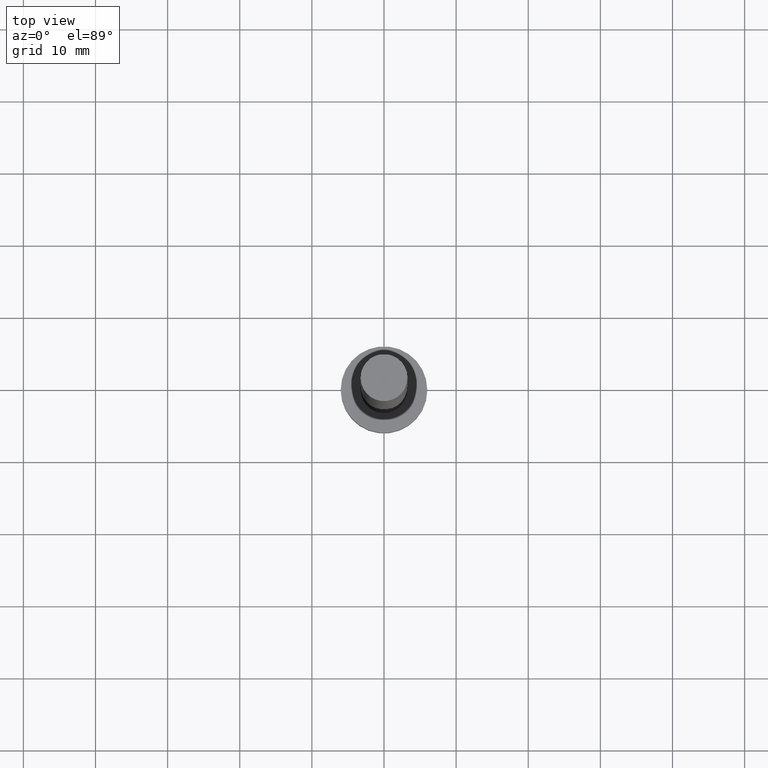
[diagram: clean part render]
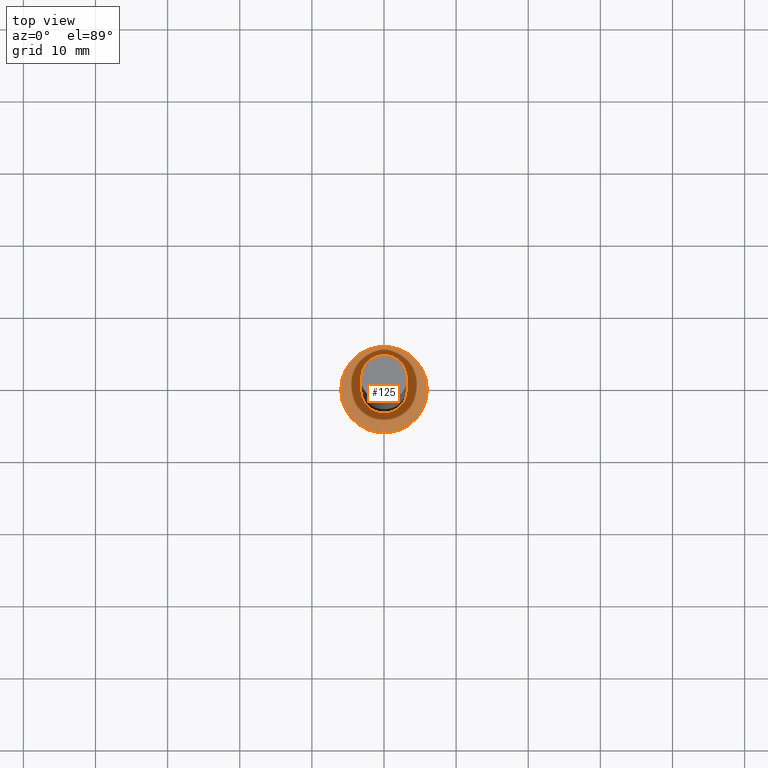
[diagram: same view with one face highlighted and labeled with its STEP entity id]
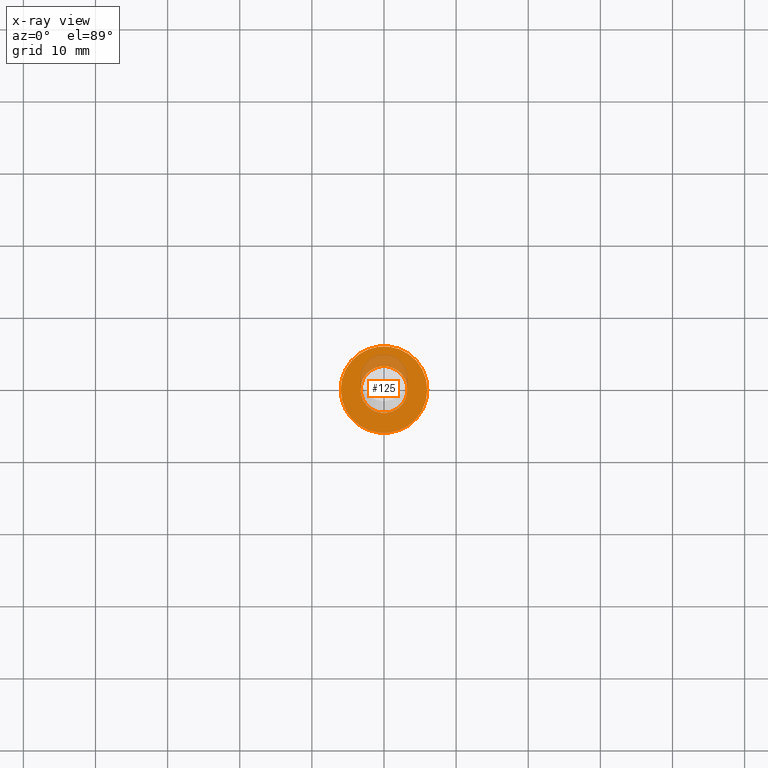
[diagram: x-ray of the same camera — body ghosted, the highlighted face saturated]
A machine part, top view. The second image highlights one B-rep face of the part: STEP entity #125.
The next image is the same camera in x-ray: the body ghosted, the highlighted face saturated — about 14% of this face is hidden behind the body in this view.
In plain terms, the highlighted planar face has unit normal (0, 0, 1).
Its self-contained STEP definition (entity closure, byte-faithful):
#14 = EDGE_CURVE ( 'NONE', #86, #200, #232, .T. ) ;
#23 = CARTESIAN_POINT ( 'NONE',  ( -6.000000000000000888, 0.000000000000000000, 5.000000000000000000 ) ) ;
#25 = AXIS2_PLACEMENT_3D ( 'NONE', #47, #33, #155 ) ;
#26 = ORIENTED_EDGE ( 'NONE', *, *, #14, .T. ) ;
#27 = CARTESIAN_POINT ( 'NONE',  ( 3.250000000000000444, 3.980102097228898231E-16, 5.000000000000000000 ) ) ;
#30 = CIRCLE ( 'NONE', #25, 3.250000000000000444 ) ;
#32 = DIRECTION ( 'NONE',  ( 0.000000000000000000, 0.000000000000000000, 1.000000000000000000 ) ) ;
#33 = DIRECTION ( 'NONE',  ( 0.000000000000000000, 0.000000000000000000, 1.000000000000000000 ) ) ;
#39 = ORIENTED_EDGE ( 'NONE', *, *, #251, .F. ) ;
#44 = VERTEX_POINT ( 'NONE', #27 ) ;
#47 = CARTESIAN_POINT ( 'NONE',  ( 0.000000000000000000, 0.000000000000000000, 5.000000000000000000 ) ) ;
#49 = CARTESIAN_POINT ( 'NONE',  ( 0.000000000000000000, 0.000000000000000000, 5.000000000000000000 ) ) ;
#51 = DIRECTION ( 'NONE',  ( 1.000000000000000000, 0.000000000000000000, 0.000000000000000000 ) ) ;
#53 = CIRCLE ( 'NONE', #223, 6.000000000000000888 ) ;
#54 = ORIENTED_EDGE ( 'NONE', *, *, #213, .F. ) ;
#71 = DIRECTION ( 'NONE',  ( 0.000000000000000000, 0.000000000000000000, 1.000000000000000000 ) ) ;
#86 = VERTEX_POINT ( 'NONE', #23 ) ;
#90 = FACE_BOUND ( 'NONE', #224, .T. ) ;
#96 = CIRCLE ( 'NONE', #255, 3.250000000000000444 ) ;
#110 = FACE_OUTER_BOUND ( 'NONE', #204, .T. ) ;
#113 = PLANE ( 'NONE',  #191 ) ;
#114 = CARTESIAN_POINT ( 'NONE',  ( 0.000000000000000000, 0.000000000000000000, 5.000000000000000000 ) ) ;
#123 = ORIENTED_EDGE ( 'NONE', *, *, #233, .T. ) ;
#125 = ADVANCED_FACE ( 'NONE', ( #90, #110 ), #113, .T. ) ;
#126 = VERTEX_POINT ( 'NONE', #131 ) ;
#131 = CARTESIAN_POINT ( 'NONE',  ( -3.250000000000000444, 0.000000000000000000, 5.000000000000000000 ) ) ;
#136 = DIRECTION ( 'NONE',  ( 0.000000000000000000, 0.000000000000000000, 1.000000000000000000 ) ) ;
#155 = DIRECTION ( 'NONE',  ( 1.000000000000000000, 0.000000000000000000, 0.000000000000000000 ) ) ;
#156 = CARTESIAN_POINT ( 'NONE',  ( 6.000000000000000888, 7.347880794884120722E-16, 5.000000000000000000 ) ) ;
#165 = DIRECTION ( 'NONE',  ( 0.000000000000000000, 0.000000000000000000, 1.000000000000000000 ) ) ;
#181 = CARTESIAN_POINT ( 'NONE',  ( 0.000000000000000000, 0.000000000000000000, 5.000000000000000000 ) ) ;
#191 = AXIS2_PLACEMENT_3D ( 'NONE', #49, #71, #244 ) ;
#200 = VERTEX_POINT ( 'NONE', #156 ) ;
#204 = EDGE_LOOP ( 'NONE', ( #26, #123 ) ) ;
#205 = DIRECTION ( 'NONE',  ( 1.000000000000000000, 0.000000000000000000, 0.000000000000000000 ) ) ;
#213 = EDGE_CURVE ( 'NONE', #44, #126, #30, .T. ) ;
#221 = AXIS2_PLACEMENT_3D ( 'NONE', #181, #165, #205 ) ;
#223 = AXIS2_PLACEMENT_3D ( 'NONE', #114, #32, #229 ) ;
#224 = EDGE_LOOP ( 'NONE', ( #39, #54 ) ) ;
#229 = DIRECTION ( 'NONE',  ( 1.000000000000000000, 0.000000000000000000, 0.000000000000000000 ) ) ;
#232 = CIRCLE ( 'NONE', #221, 6.000000000000000888 ) ;
#233 = EDGE_CURVE ( 'NONE', #200, #86, #53, .T. ) ;
#244 = DIRECTION ( 'NONE',  ( 1.000000000000000000, 0.000000000000000000, -0.000000000000000000 ) ) ;
#247 = CARTESIAN_POINT ( 'NONE',  ( 0.000000000000000000, 0.000000000000000000, 5.000000000000000000 ) ) ;
#251 = EDGE_CURVE ( 'NONE', #126, #44, #96, .T. ) ;
#255 = AXIS2_PLACEMENT_3D ( 'NONE', #247, #136, #51 ) ;